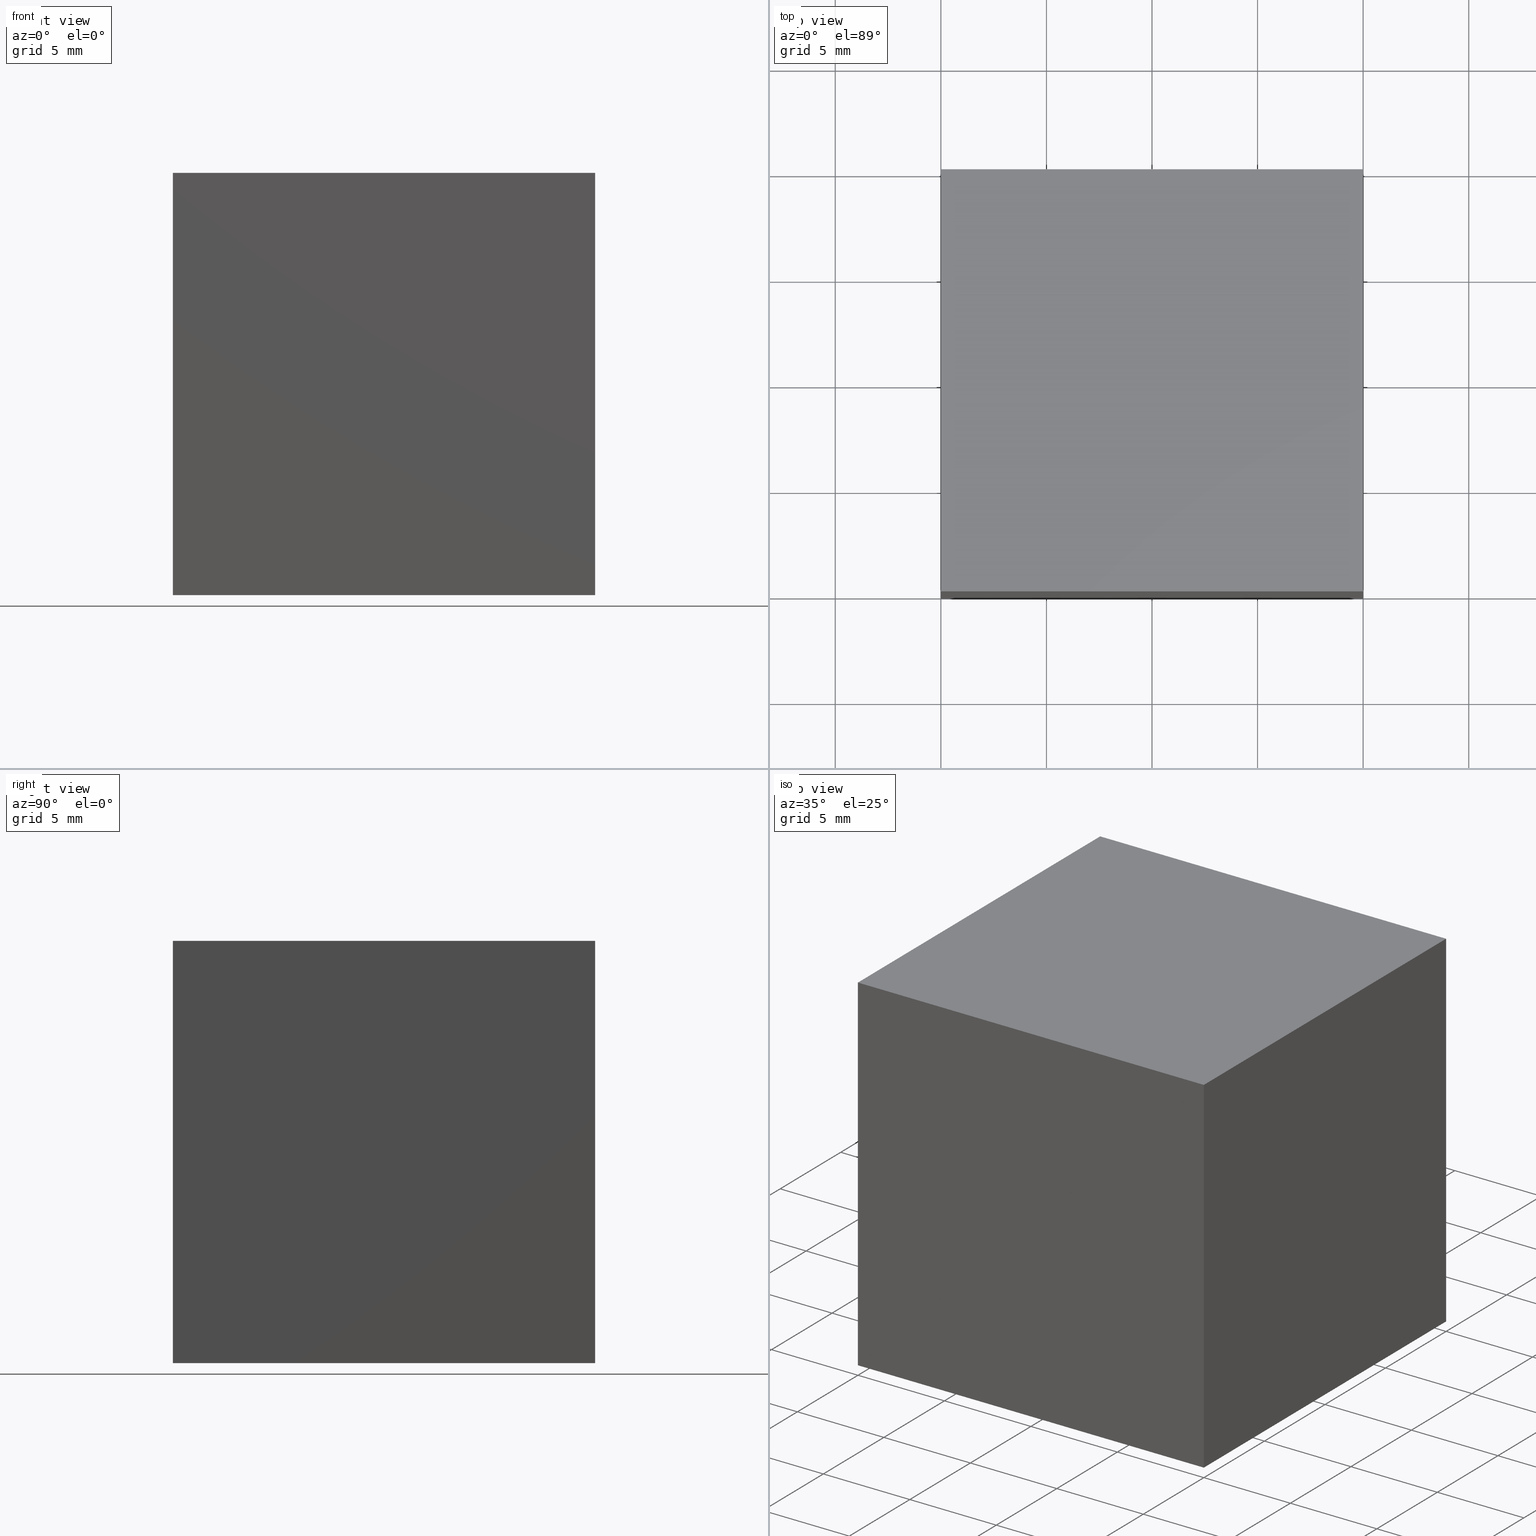
[diagram: canonical four-view strip — front | top / right | iso, engineering-drawing reading convention]
A machine part, canonical four-view strip (front | top / right | iso — engineering-drawing reading convention). The complete STEP part file that produces these views, byte-faithful:
ISO-10303-21;
HEADER;
FILE_DESCRIPTION (( 'STEP AP214' ),
    '1' );
FILE_NAME ('352512.STEP',
    '2019-08-15T02:42:42',
    ( 'user' ),
    ( '΢���й�' ),
    'SwSTEP 2.0',
    'SolidWorks 2016',
    '' );
FILE_SCHEMA (( 'AUTOMOTIVE_DESIGN' ));
ENDSEC;

DATA;
#1 = FACE_OUTER_BOUND ( 'NONE', #225, .T. ) ;
#2 = EDGE_CURVE ( 'NONE', #237, #266, #287, .T. ) ;
#3 = VERTEX_POINT ( 'NONE', #76 ) ;
#4 = ORIENTED_EDGE ( 'NONE', *, *, #5, .T. ) ;
#5 = EDGE_CURVE ( 'NONE', #12, #141, #219, .T. ) ;
#6 = CARTESIAN_POINT ( 'NONE',  ( 0.0000000000000000000, 20.00000000000000000, 0.0000000000000000000 ) ) ;
#7 = CARTESIAN_POINT ( 'NONE',  ( 0.0000000000000000000, 20.00000000000000000, 0.0000000000000000000 ) ) ;
#8 = ADVANCED_BREP_SHAPE_REPRESENTATION ( '352512', ( #249, #153, #176 ), #61 ) ;
#9 = FILL_AREA_STYLE ('',( #177 ) ) ;
#10 = DIRECTION ( 'NONE',  ( 0.7071067811865474600, 0.0000000000000000000, -0.7071067811865475700 ) ) ;
#11 = ORIENTED_EDGE ( 'NONE', *, *, #223, .F. ) ;
#12 = VERTEX_POINT ( 'NONE', #286 ) ;
#13 = CARTESIAN_POINT ( 'NONE',  ( -20.00000000000000000, 20.00000000000000000, 0.0000000000000000000 ) ) ;
#14 = ORIENTED_EDGE ( 'NONE', *, *, #192, .F. ) ;
#15 = ADVANCED_FACE ( 'NONE', ( #1 ), #154, .T. ) ;
#16 = CARTESIAN_POINT ( 'NONE',  ( 0.0000000000000000000, 20.00000000000000000, 0.0000000000000000000 ) ) ;
#17 = PLANE ( 'NONE',  #84 ) ;
#18 = DIRECTION ( 'NONE',  ( 0.7071067811865474600, 0.0000000000000000000, -0.7071067811865475700 ) ) ;
#19 = LINE ( 'NONE', #222, #51 ) ;
#20 = VERTEX_POINT ( 'NONE', #268 ) ;
#21 = ORIENTED_EDGE ( 'NONE', *, *, #68, .T. ) ;
#22 = VECTOR ( 'NONE', #271, 1000.000000000000000 ) ;
#23 = FACE_OUTER_BOUND ( 'NONE', #235, .T. ) ;
#24 = AXIS2_PLACEMENT_3D ( 'NONE', #295, #188, #40 ) ;
#25 = ORIENTED_EDGE ( 'NONE', *, *, #2, .T. ) ;
#26 = EDGE_CURVE ( 'NONE', #89, #3, #100, .T. ) ;
#27 = DIRECTION ( 'NONE',  ( 1.734723475976807100E-016, -0.0000000000000000000, 1.000000000000000000 ) ) ;
#28 = DIRECTION ( 'NONE',  ( 0.0000000000000000000, -0.0000000000000000000, 1.000000000000000000 ) ) ;
#29 = DIRECTION ( 'NONE',  ( -0.7071067811865475700, 0.0000000000000000000, -0.7071067811865474600 ) ) ;
#30 = EDGE_LOOP ( 'NONE', ( #213, #113, #191, #201 ) ) ;
#31 = VECTOR ( 'NONE', #161, 1000.000000000000000 ) ;
#32 = DIRECTION ( 'NONE',  ( -1.000000000000000000, 0.0000000000000000000, 1.734723475976807100E-016 ) ) ;
#33 = EDGE_CURVE ( 'NONE', #266, #238, #175, .T. ) ;
#34 =( NAMED_UNIT ( * ) PLANE_ANGLE_UNIT ( ) SI_UNIT ( $, .RADIAN. ) );
#35 = DIRECTION ( 'NONE',  ( 0.0000000000000000000, 0.0000000000000000000, 1.000000000000000000 ) ) ;
#36 = VECTOR ( 'NONE', #156, 1000.000000000000000 ) ;
#37 = ADVANCED_FACE ( 'NONE', ( #199 ), #196, .F. ) ;
#38 = CARTESIAN_POINT ( 'NONE',  ( -20.00000000000000000, -0.0000000000000000000, -19.99999999999999600 ) ) ;
#39 = MECHANICAL_DESIGN_GEOMETRIC_PRESENTATION_REPRESENTATION (  '', ( #296 ), #208 ) ;
#40 = DIRECTION ( 'NONE',  ( 0.0000000000000000000, -0.0000000000000000000, 1.000000000000000000 ) ) ;
#41 = VECTOR ( 'NONE', #66, 1000.000000000000000 ) ;
#42 = CLOSED_SHELL ( 'NONE', ( #106, #228, #37, #128, #80 ) ) ;
#43 = VECTOR ( 'NONE', #157, 1000.000000000000000 ) ;
#44 = ORIENTED_EDGE ( 'NONE', *, *, #71, .F. ) ;
#45 = LINE ( 'NONE', #6, #117 ) ;
#46 = ORIENTED_EDGE ( 'NONE', *, *, #2, .F. ) ;
#47 = VERTEX_POINT ( 'NONE', #281 ) ;
#48 = CARTESIAN_POINT ( 'NONE',  ( -20.00000000000000000, 20.00000000000000000, 0.0000000000000000000 ) ) ;
#49 = CARTESIAN_POINT ( 'NONE',  ( 0.0000000000000000000, 20.00000000000000000, -20.00000000000000000 ) ) ;
#50 = DIRECTION ( 'NONE',  ( -0.0000000000000000000, 1.000000000000000000, 0.0000000000000000000 ) ) ;
#51 = VECTOR ( 'NONE', #95, 1000.000000000000000 ) ;
#52 = CARTESIAN_POINT ( 'NONE',  ( 0.0000000000000000000, 0.0000000000000000000, 0.0000000000000000000 ) ) ;
#53 = EDGE_LOOP ( 'NONE', ( #11, #142, #103 ) ) ;
#54 = DIRECTION ( 'NONE',  ( 1.000000000000000000, 0.0000000000000000000, 0.0000000000000000000 ) ) ;
#55 = CARTESIAN_POINT ( 'NONE',  ( -20.00000000000000000, 0.0000000000000000000, -19.99999999999999600 ) ) ;
#56 = CARTESIAN_POINT ( 'NONE',  ( 0.0000000000000000000, 20.00000000000000000, 0.0000000000000000000 ) ) ;
#57 = UNCERTAINTY_MEASURE_WITH_UNIT (LENGTH_MEASURE( 1.000000000000000100E-005 ), #226, 'distance_accuracy_value', 'NONE');
#58 =( LENGTH_UNIT ( ) NAMED_UNIT ( * ) SI_UNIT ( .MILLI., .METRE. ) );
#59 = COLOUR_RGB ( '',1.000000000000000000, 1.000000000000000000, 1.000000000000000000 ) ;
#60 = EDGE_CURVE ( 'NONE', #20, #12, #133, .T. ) ;
#61 =( GEOMETRIC_REPRESENTATION_CONTEXT ( 3 ) GLOBAL_UNCERTAINTY_ASSIGNED_CONTEXT ( ( #256 ) ) GLOBAL_UNIT_ASSIGNED_CONTEXT ( ( #58, #254, #110 ) ) REPRESENTATION_CONTEXT ( 'NONE', 'WORKASPACE' ) );
#62 = VECTOR ( 'NONE', #260, 1000.000000000000000 ) ;
#63 = ORIENTED_EDGE ( 'NONE', *, *, #78, .F. ) ;
#64 = EDGE_LOOP ( 'NONE', ( #214, #280, #25 ) ) ;
#65 = EDGE_CURVE ( 'NONE', #194, #74, #273, .T. ) ;
#66 = DIRECTION ( 'NONE',  ( 0.0000000000000000000, -1.000000000000000000, 0.0000000000000000000 ) ) ;
#67 = VECTOR ( 'NONE', #183, 1000.000000000000000 ) ;
#68 = EDGE_CURVE ( 'NONE', #74, #126, #140, .T. ) ;
#69 = DIRECTION ( 'NONE',  ( -0.0000000000000000000, -1.000000000000000000, -0.0000000000000000000 ) ) ;
#70 = VECTOR ( 'NONE', #261, 1000.000000000000000 ) ;
#71 = EDGE_CURVE ( 'NONE', #194, #141, #45, .T. ) ;
#72 = CARTESIAN_POINT ( 'NONE',  ( 0.0000000000000000000, 20.00000000000000000, 0.0000000000000000000 ) ) ;
#73 = SHAPE_DEFINITION_REPRESENTATION ( #215, #8 ) ;
#74 = VERTEX_POINT ( 'NONE', #171 ) ;
#75 = VECTOR ( 'NONE', #99, 1000.000000000000000 ) ;
#76 = CARTESIAN_POINT ( 'NONE',  ( -20.00000000000000000, 0.0000000000000000000, -19.99999999999999600 ) ) ;
#77 = DIRECTION ( 'NONE',  ( -0.0000000000000000000, 0.0000000000000000000, 1.000000000000000000 ) ) ;
#78 = EDGE_CURVE ( 'NONE', #266, #3, #279, .T. ) ;
#79 =( NAMED_UNIT ( * ) SI_UNIT ( $, .STERADIAN. ) SOLID_ANGLE_UNIT ( ) );
#80 = ADVANCED_FACE ( 'NONE', ( #248 ), #264, .F. ) ;
#81 = DIRECTION ( 'NONE',  ( 0.0000000000000000000, 1.000000000000000000, 0.0000000000000000000 ) ) ;
#82 = FILL_AREA_STYLE_COLOUR ( '', #206 ) ;
#83 = LINE ( 'NONE', #289, #121 ) ;
#84 = AXIS2_PLACEMENT_3D ( 'NONE', #130, #186, #35 ) ;
#85 = SURFACE_SIDE_STYLE ('',( #221 ) ) ;
#86 = CLOSED_SHELL ( 'NONE', ( #252, #291, #15, #205, #298 ) ) ;
#87 = PRESENTATION_LAYER_ASSIGNMENT (  '', '', ( #217 ) ) ;
#88 = SURFACE_STYLE_USAGE ( .BOTH. , #85 ) ;
#89 = VERTEX_POINT ( 'NONE', #244 ) ;
#90 = ORIENTED_EDGE ( 'NONE', *, *, #155, .F. ) ;
#91 = ORIENTED_EDGE ( 'NONE', *, *, #192, .T. ) ;
#92 = CARTESIAN_POINT ( 'NONE',  ( -20.00000000000000000, 20.00000000000000000, -19.99999999999999600 ) ) ;
#93 = DIRECTION ( 'NONE',  ( -1.000000000000000000, 0.0000000000000000000, 1.734723475976807100E-016 ) ) ;
#94 = APPLICATION_PROTOCOL_DEFINITION ( 'draft international standard', 'automotive_design', 1998, #119 ) ;
#95 = DIRECTION ( 'NONE',  ( 0.0000000000000000000, 0.0000000000000000000, -1.000000000000000000 ) ) ;
#96 = DIRECTION ( 'NONE',  ( 1.000000000000000000, 0.0000000000000000000, 0.0000000000000000000 ) ) ;
#97 = CARTESIAN_POINT ( 'NONE',  ( 0.0000000000000000000, 0.0000000000000000000, 0.0000000000000000000 ) ) ;
#98 =( GEOMETRIC_REPRESENTATION_CONTEXT ( 3 ) GLOBAL_UNCERTAINTY_ASSIGNED_CONTEXT ( ( #148 ) ) GLOBAL_UNIT_ASSIGNED_CONTEXT ( ( #267, #165, #115 ) ) REPRESENTATION_CONTEXT ( 'NONE', 'WORKASPACE' ) );
#99 = DIRECTION ( 'NONE',  ( -1.000000000000000000, -0.0000000000000000000, -0.0000000000000000000 ) ) ;
#100 = LINE ( 'NONE', #247, #160 ) ;
#101 = MECHANICAL_DESIGN_GEOMETRIC_PRESENTATION_REPRESENTATION (  '', ( #217 ), #159 ) ;
#102 = CARTESIAN_POINT ( 'NONE',  ( -20.00000000000000000, 20.00000000000000000, -19.99999999999999600 ) ) ;
#103 = ORIENTED_EDGE ( 'NONE', *, *, #109, .F. ) ;
#104 = ORIENTED_EDGE ( 'NONE', *, *, #60, .T. ) ;
#105 = DIRECTION ( 'NONE',  ( 0.7071067811865475700, 0.0000000000000000000, 0.7071067811865474600 ) ) ;
#106 = ADVANCED_FACE ( 'NONE', ( #23 ), #123, .F. ) ;
#107 = SURFACE_SIDE_STYLE ('',( #202 ) ) ;
#108 = PLANE ( 'NONE',  #24 ) ;
#109 = EDGE_CURVE ( 'NONE', #47, #89, #19, .T. ) ;
#110 =( NAMED_UNIT ( * ) SI_UNIT ( $, .STERADIAN. ) SOLID_ANGLE_UNIT ( ) );
#111 = SURFACE_STYLE_FILL_AREA ( #9 ) ;
#112 = EDGE_LOOP ( 'NONE', ( #169, #118, #91, #104 ) ) ;
#113 = ORIENTED_EDGE ( 'NONE', *, *, #60, .F. ) ;
#114 = UNCERTAINTY_MEASURE_WITH_UNIT (LENGTH_MEASURE( 1.000000000000000100E-005 ), #131, 'distance_accuracy_value', 'NONE');
#115 =( NAMED_UNIT ( * ) SI_UNIT ( $, .STERADIAN. ) SOLID_ANGLE_UNIT ( ) );
#116 = AXIS2_PLACEMENT_3D ( 'NONE', #198, #10, #29 ) ;
#117 = VECTOR ( 'NONE', #144, 1000.000000000000000 ) ;
#118 = ORIENTED_EDGE ( 'NONE', *, *, #68, .F. ) ;
#119 = APPLICATION_CONTEXT ( 'automotive_design' ) ;
#120 = CARTESIAN_POINT ( 'NONE',  ( -20.00000000000000000, 20.00000000000000000, -19.99999999999999600 ) ) ;
#121 = VECTOR ( 'NONE', #270, 1000.000000000000000 ) ;
#122 = CARTESIAN_POINT ( 'NONE',  ( 0.0000000000000000000, 0.0000000000000000000, 0.0000000000000000000 ) ) ;
#123 = PLANE ( 'NONE',  #116 ) ;
#124 = DIRECTION ( 'NONE',  ( -0.0000000000000000000, 1.000000000000000000, 0.0000000000000000000 ) ) ;
#125 = VECTOR ( 'NONE', #218, 1000.000000000000000 ) ;
#126 = VERTEX_POINT ( 'NONE', #178 ) ;
#127 = ORIENTED_EDGE ( 'NONE', *, *, #145, .F. ) ;
#128 = ADVANCED_FACE ( 'NONE', ( #164 ), #149, .T. ) ;
#129 = PRODUCT_DEFINITION ( 'δ֪', '', #166, #285 ) ;
#130 = CARTESIAN_POINT ( 'NONE',  ( 0.0000000000000000000, 20.00000000000000000, 0.0000000000000000000 ) ) ;
#131 =( LENGTH_UNIT ( ) NAMED_UNIT ( * ) SI_UNIT ( .MILLI., .METRE. ) );
#132 = DIRECTION ( 'NONE',  ( 0.0000000000000000000, 0.0000000000000000000, 1.000000000000000000 ) ) ;
#133 = LINE ( 'NONE', #120, #62 ) ;
#134 = APPLICATION_PROTOCOL_DEFINITION ( 'draft international standard', 'automotive_design', 1998, #163 ) ;
#135 = EDGE_CURVE ( 'NONE', #238, #237, #265, .T. ) ;
#136 = VECTOR ( 'NONE', #240, 1000.000000000000000 ) ;
#137 = EDGE_CURVE ( 'NONE', #238, #47, #245, .T. ) ;
#138 = FACE_OUTER_BOUND ( 'NONE', #168, .T. ) ;
#139 = AXIS2_PLACEMENT_3D ( 'NONE', #49, #27, #146 ) ;
#140 = LINE ( 'NONE', #174, #41 ) ;
#141 = VERTEX_POINT ( 'NONE', #122 ) ;
#142 = ORIENTED_EDGE ( 'NONE', *, *, #26, .F. ) ;
#143 = PRESENTATION_STYLE_ASSIGNMENT (( #272 ) ) ;
#144 = DIRECTION ( 'NONE',  ( 0.0000000000000000000, -1.000000000000000000, 0.0000000000000000000 ) ) ;
#145 = EDGE_CURVE ( 'NONE', #20, #194, #234, .T. ) ;
#146 = DIRECTION ( 'NONE',  ( 1.000000000000000000, 0.0000000000000000000, -1.734723475976807100E-016 ) ) ;
#147 = CARTESIAN_POINT ( 'NONE',  ( -20.00000000000000000, 0.0000000000000000000, 0.0000000000000000000 ) ) ;
#148 = UNCERTAINTY_MEASURE_WITH_UNIT (LENGTH_MEASURE( 1.000000000000000100E-005 ), #267, 'distance_accuracy_value', 'NONE');
#149 = PLANE ( 'NONE',  #151 ) ;
#150 = ORIENTED_EDGE ( 'NONE', *, *, #223, .T. ) ;
#151 = AXIS2_PLACEMENT_3D ( 'NONE', #263, #50, #28 ) ;
#152 = ORIENTED_EDGE ( 'NONE', *, *, #257, .T. ) ;
#153 = MANIFOLD_SOLID_BREP ( '͹̨-����2', #86 ) ;
#154 = PLANE ( 'NONE',  #258 ) ;
#155 = EDGE_CURVE ( 'NONE', #237, #89, #83, .T. ) ;
#156 = DIRECTION ( 'NONE',  ( 0.7071067811865475700, 0.0000000000000000000, 0.7071067811865474600 ) ) ;
#157 = DIRECTION ( 'NONE',  ( -0.0000000000000000000, -0.0000000000000000000, -1.000000000000000000 ) ) ;
#158 = FACE_OUTER_BOUND ( 'NONE', #112, .T. ) ;
#159 =( GEOMETRIC_REPRESENTATION_CONTEXT ( 3 ) GLOBAL_UNCERTAINTY_ASSIGNED_CONTEXT ( ( #57 ) ) GLOBAL_UNIT_ASSIGNED_CONTEXT ( ( #226, #34, #204 ) ) REPRESENTATION_CONTEXT ( 'NONE', 'WORKASPACE' ) );
#160 = VECTOR ( 'NONE', #93, 1000.000000000000000 ) ;
#161 = DIRECTION ( 'NONE',  ( -0.0000000000000000000, -0.0000000000000000000, -1.000000000000000000 ) ) ;
#162 = EDGE_LOOP ( 'NONE', ( #301, #63, #46, #170 ) ) ;
#163 = APPLICATION_CONTEXT ( 'automotive_design' ) ;
#164 = FACE_OUTER_BOUND ( 'NONE', #64, .T. ) ;
#165 =( NAMED_UNIT ( * ) PLANE_ANGLE_UNIT ( ) SI_UNIT ( $, .RADIAN. ) );
#166 = PRODUCT_DEFINITION_FORMATION_WITH_SPECIFIED_SOURCE ( '�κ�', '', #193, .NOT_KNOWN. ) ;
#167 = PRODUCT_CONTEXT ( 'NONE', #163, 'mechanical' ) ;
#168 = EDGE_LOOP ( 'NONE', ( #4, #190, #152 ) ) ;
#169 = ORIENTED_EDGE ( 'NONE', *, *, #257, .F. ) ;
#170 = ORIENTED_EDGE ( 'NONE', *, *, #155, .T. ) ;
#171 = CARTESIAN_POINT ( 'NONE',  ( -20.00000000000000000, 20.00000000000000000, 0.0000000000000000000 ) ) ;
#172 = FACE_OUTER_BOUND ( 'NONE', #30, .T. ) ;
#173 = EDGE_CURVE ( 'NONE', #141, #126, #292, .T. ) ;
#174 = CARTESIAN_POINT ( 'NONE',  ( -20.00000000000000000, 20.00000000000000000, 0.0000000000000000000 ) ) ;
#175 = LINE ( 'NONE', #102, #125 ) ;
#176 = AXIS2_PLACEMENT_3D ( 'NONE', #283, #243, #96 ) ;
#177 = FILL_AREA_STYLE_COLOUR ( '', #179 ) ;
#178 = CARTESIAN_POINT ( 'NONE',  ( -20.00000000000000000, 0.0000000000000000000, 0.0000000000000000000 ) ) ;
#179 = COLOUR_RGB ( '',1.000000000000000000, 1.000000000000000000, 1.000000000000000000 ) ;
#180 = CARTESIAN_POINT ( 'NONE',  ( 0.0000000000000000000, 20.00000000000000000, -20.00000000000000000 ) ) ;
#181 = ORIENTED_EDGE ( 'NONE', *, *, #65, .T. ) ;
#182 = ORIENTED_EDGE ( 'NONE', *, *, #135, .F. ) ;
#183 = DIRECTION ( 'NONE',  ( -0.0000000000000000000, -1.000000000000000000, -0.0000000000000000000 ) ) ;
#184 = CARTESIAN_POINT ( 'NONE',  ( -20.00000000000000000, 20.00000000000000000, -19.99999999999999600 ) ) ;
#185 = VECTOR ( 'NONE', #32, 1000.000000000000000 ) ;
#186 = DIRECTION ( 'NONE',  ( -1.000000000000000000, 0.0000000000000000000, 0.0000000000000000000 ) ) ;
#187 = DIRECTION ( 'NONE',  ( -0.7071067811865475700, 0.0000000000000000000, -0.7071067811865474600 ) ) ;
#188 = DIRECTION ( 'NONE',  ( 0.0000000000000000000, 1.000000000000000000, 0.0000000000000000000 ) ) ;
#189 = AXIS2_PLACEMENT_3D ( 'NONE', #253, #274, #132 ) ;
#190 = ORIENTED_EDGE ( 'NONE', *, *, #173, .T. ) ;
#191 = ORIENTED_EDGE ( 'NONE', *, *, #145, .T. ) ;
#192 = EDGE_CURVE ( 'NONE', #74, #20, #262, .T. ) ;
#193 = PRODUCT ( '352512', '352512', '', ( #167 ) ) ;
#194 = VERTEX_POINT ( 'NONE', #7 ) ;
#195 = PRODUCT_RELATED_PRODUCT_CATEGORY ( 'part', '', ( #193 ) ) ;
#196 = PLANE ( 'NONE',  #139 ) ;
#197 = SURFACE_SIDE_STYLE ('',( #111 ) ) ;
#198 = CARTESIAN_POINT ( 'NONE',  ( -20.00000000000000000, 20.00000000000000000, -19.99999999999999600 ) ) ;
#199 = FACE_OUTER_BOUND ( 'NONE', #162, .T. ) ;
#200 = MECHANICAL_DESIGN_GEOMETRIC_PRESENTATION_REPRESENTATION (  '', ( #236 ), #98 ) ;
#201 = ORIENTED_EDGE ( 'NONE', *, *, #71, .T. ) ;
#202 = SURFACE_STYLE_FILL_AREA ( #251 ) ;
#203 = AXIS2_PLACEMENT_3D ( 'NONE', #16, #81, #250 ) ;
#204 =( NAMED_UNIT ( * ) SI_UNIT ( $, .STERADIAN. ) SOLID_ANGLE_UNIT ( ) );
#205 = ADVANCED_FACE ( 'NONE', ( #290 ), #230, .T. ) ;
#206 = COLOUR_RGB ( '',1.000000000000000000, 1.000000000000000000, 1.000000000000000000 ) ;
#207 = PLANE ( 'NONE',  #277 ) ;
#208 =( GEOMETRIC_REPRESENTATION_CONTEXT ( 3 ) GLOBAL_UNCERTAINTY_ASSIGNED_CONTEXT ( ( #114 ) ) GLOBAL_UNIT_ASSIGNED_CONTEXT ( ( #131, #227, #79 ) ) REPRESENTATION_CONTEXT ( 'NONE', 'WORKASPACE' ) );
#209 = PLANE ( 'NONE',  #189 ) ;
#210 = EDGE_LOOP ( 'NONE', ( #127, #14, #246 ) ) ;
#211 = FILL_AREA_STYLE ('',( #297 ) ) ;
#212 = PRESENTATION_STYLE_ASSIGNMENT (( #88 ) ) ;
#213 = ORIENTED_EDGE ( 'NONE', *, *, #5, .F. ) ;
#214 = ORIENTED_EDGE ( 'NONE', *, *, #33, .T. ) ;
#215 = PRODUCT_DEFINITION_SHAPE ( 'NONE', 'NONE',  #129 ) ;
#216 = ORIENTED_EDGE ( 'NONE', *, *, #33, .F. ) ;
#217 = STYLED_ITEM ( 'NONE', ( #276 ), #153 ) ;
#218 = DIRECTION ( 'NONE',  ( 0.7071067811865475700, 0.0000000000000000000, 0.7071067811865474600 ) ) ;
#219 = LINE ( 'NONE', #52, #241 ) ;
#220 = CARTESIAN_POINT ( 'NONE',  ( 0.0000000000000000000, 20.00000000000000000, 0.0000000000000000000 ) ) ;
#221 = SURFACE_STYLE_FILL_AREA ( #211 ) ;
#222 = CARTESIAN_POINT ( 'NONE',  ( 0.0000000000000000000, 0.0000000000000000000, 0.0000000000000000000 ) ) ;
#223 = EDGE_CURVE ( 'NONE', #3, #47, #239, .T. ) ;
#224 = ORIENTED_EDGE ( 'NONE', *, *, #137, .F. ) ;
#225 = EDGE_LOOP ( 'NONE', ( #259, #44, #181, #21 ) ) ;
#226 =( LENGTH_UNIT ( ) NAMED_UNIT ( * ) SI_UNIT ( .MILLI., .METRE. ) );
#227 =( NAMED_UNIT ( * ) PLANE_ANGLE_UNIT ( ) SI_UNIT ( $, .RADIAN. ) );
#228 = ADVANCED_FACE ( 'NONE', ( #269 ), #17, .F. ) ;
#229 = AXIS2_PLACEMENT_3D ( 'NONE', #97, #124, #284 ) ;
#230 = PLANE ( 'NONE',  #203 ) ;
#231 = CARTESIAN_POINT ( 'NONE',  ( 0.0000000000000000000, 20.00000000000000000, 0.0000000000000000000 ) ) ;
#232 = CARTESIAN_POINT ( 'NONE',  ( -20.00000000000000000, 20.00000000000000000, -19.99999999999999600 ) ) ;
#233 = PRESENTATION_LAYER_ASSIGNMENT (  '', '', ( #296 ) ) ;
#234 = LINE ( 'NONE', #220, #36 ) ;
#235 = EDGE_LOOP ( 'NONE', ( #150, #224, #216, #300 ) ) ;
#236 = STYLED_ITEM ( 'NONE', ( #212 ), #8 ) ;
#237 = VERTEX_POINT ( 'NONE', #294 ) ;
#238 = VERTEX_POINT ( 'NONE', #56 ) ;
#239 = LINE ( 'NONE', #55, #22 ) ;
#240 = DIRECTION ( 'NONE',  ( -1.000000000000000000, -0.0000000000000000000, -0.0000000000000000000 ) ) ;
#241 = VECTOR ( 'NONE', #105, 1000.000000000000000 ) ;
#242 = SURFACE_STYLE_USAGE ( .BOTH. , #197 ) ;
#243 = DIRECTION ( 'NONE',  ( 0.0000000000000000000, 0.0000000000000000000, 1.000000000000000000 ) ) ;
#244 = CARTESIAN_POINT ( 'NONE',  ( 0.0000000000000000000, 0.0000000000000000000, -20.00000000000000000 ) ) ;
#245 = LINE ( 'NONE', #72, #67 ) ;
#246 = ORIENTED_EDGE ( 'NONE', *, *, #65, .F. ) ;
#247 = CARTESIAN_POINT ( 'NONE',  ( 0.0000000000000000000, 0.0000000000000000000, -20.00000000000000000 ) ) ;
#248 = FACE_OUTER_BOUND ( 'NONE', #53, .T. ) ;
#249 = MANIFOLD_SOLID_BREP ( '͹̨-����1', #42 ) ;
#250 = DIRECTION ( 'NONE',  ( 0.0000000000000000000, -0.0000000000000000000, 1.000000000000000000 ) ) ;
#251 = FILL_AREA_STYLE ('',( #82 ) ) ;
#252 = ADVANCED_FACE ( 'NONE', ( #172 ), #207, .T. ) ;
#253 = CARTESIAN_POINT ( 'NONE',  ( -20.00000000000000000, 20.00000000000000000, -19.99999999999999600 ) ) ;
#254 =( NAMED_UNIT ( * ) PLANE_ANGLE_UNIT ( ) SI_UNIT ( $, .RADIAN. ) );
#255 = ORIENTED_EDGE ( 'NONE', *, *, #109, .T. ) ;
#256 = UNCERTAINTY_MEASURE_WITH_UNIT (LENGTH_MEASURE( 1.000000000000000100E-005 ), #58, 'distance_accuracy_value', 'NONE');
#257 = EDGE_CURVE ( 'NONE', #126, #12, #278, .T. ) ;
#258 = AXIS2_PLACEMENT_3D ( 'NONE', #13, #77, #54 ) ;
#259 = ORIENTED_EDGE ( 'NONE', *, *, #173, .F. ) ;
#260 = DIRECTION ( 'NONE',  ( 0.0000000000000000000, -1.000000000000000000, 0.0000000000000000000 ) ) ;
#261 = DIRECTION ( 'NONE',  ( 0.0000000000000000000, 0.0000000000000000000, -1.000000000000000000 ) ) ;
#262 = LINE ( 'NONE', #184, #43 ) ;
#263 = CARTESIAN_POINT ( 'NONE',  ( 0.0000000000000000000, 20.00000000000000000, 0.0000000000000000000 ) ) ;
#264 = PLANE ( 'NONE',  #229 ) ;
#265 = LINE ( 'NONE', #282, #70 ) ;
#266 = VERTEX_POINT ( 'NONE', #232 ) ;
#267 =( LENGTH_UNIT ( ) NAMED_UNIT ( * ) SI_UNIT ( .MILLI., .METRE. ) );
#268 = CARTESIAN_POINT ( 'NONE',  ( -20.00000000000000000, 20.00000000000000000, -19.99999999999999600 ) ) ;
#269 = FACE_OUTER_BOUND ( 'NONE', #288, .T. ) ;
#270 = DIRECTION ( 'NONE',  ( -0.0000000000000000000, -1.000000000000000000, -0.0000000000000000000 ) ) ;
#271 = DIRECTION ( 'NONE',  ( 0.7071067811865475700, 0.0000000000000000000, 0.7071067811865474600 ) ) ;
#272 = SURFACE_STYLE_USAGE ( .BOTH. , #107 ) ;
#273 = LINE ( 'NONE', #48, #136 ) ;
#274 = DIRECTION ( 'NONE',  ( -1.000000000000000000, 0.0000000000000000000, 0.0000000000000000000 ) ) ;
#275 = ORIENTED_EDGE ( 'NONE', *, *, #137, .T. ) ;
#276 = PRESENTATION_STYLE_ASSIGNMENT (( #242 ) ) ;
#277 = AXIS2_PLACEMENT_3D ( 'NONE', #231, #18, #187 ) ;
#278 = LINE ( 'NONE', #38, #31 ) ;
#279 = LINE ( 'NONE', #92, #299 ) ;
#280 = ORIENTED_EDGE ( 'NONE', *, *, #135, .T. ) ;
#281 = CARTESIAN_POINT ( 'NONE',  ( 0.0000000000000000000, 0.0000000000000000000, 0.0000000000000000000 ) ) ;
#282 = CARTESIAN_POINT ( 'NONE',  ( 0.0000000000000000000, 20.00000000000000000, 0.0000000000000000000 ) ) ;
#283 = CARTESIAN_POINT ( 'NONE',  ( 0.0000000000000000000, 0.0000000000000000000, 0.0000000000000000000 ) ) ;
#284 = DIRECTION ( 'NONE',  ( 0.0000000000000000000, -0.0000000000000000000, 1.000000000000000000 ) ) ;
#285 = PRODUCT_DEFINITION_CONTEXT ( 'detailed design', #119, 'design' ) ;
#286 = CARTESIAN_POINT ( 'NONE',  ( -20.00000000000000000, -0.0000000000000000000, -19.99999999999999600 ) ) ;
#287 = LINE ( 'NONE', #180, #185 ) ;
#288 = EDGE_LOOP ( 'NONE', ( #255, #90, #182, #275 ) ) ;
#289 = CARTESIAN_POINT ( 'NONE',  ( 0.0000000000000000000, 20.00000000000000000, -20.00000000000000000 ) ) ;
#290 = FACE_OUTER_BOUND ( 'NONE', #210, .T. ) ;
#291 = ADVANCED_FACE ( 'NONE', ( #158 ), #209, .T. ) ;
#292 = LINE ( 'NONE', #147, #75 ) ;
#293 = PRESENTATION_LAYER_ASSIGNMENT (  '', '', ( #236 ) ) ;
#294 = CARTESIAN_POINT ( 'NONE',  ( 0.0000000000000000000, 20.00000000000000000, -20.00000000000000000 ) ) ;
#295 = CARTESIAN_POINT ( 'NONE',  ( 0.0000000000000000000, 0.0000000000000000000, 0.0000000000000000000 ) ) ;
#296 = STYLED_ITEM ( 'NONE', ( #143 ), #249 ) ;
#297 = FILL_AREA_STYLE_COLOUR ( '', #59 ) ;
#298 = ADVANCED_FACE ( 'NONE', ( #138 ), #108, .F. ) ;
#299 = VECTOR ( 'NONE', #69, 1000.000000000000000 ) ;
#300 = ORIENTED_EDGE ( 'NONE', *, *, #78, .T. ) ;
#301 = ORIENTED_EDGE ( 'NONE', *, *, #26, .T. ) ;
ENDSEC;
END-ISO-10303-21;
